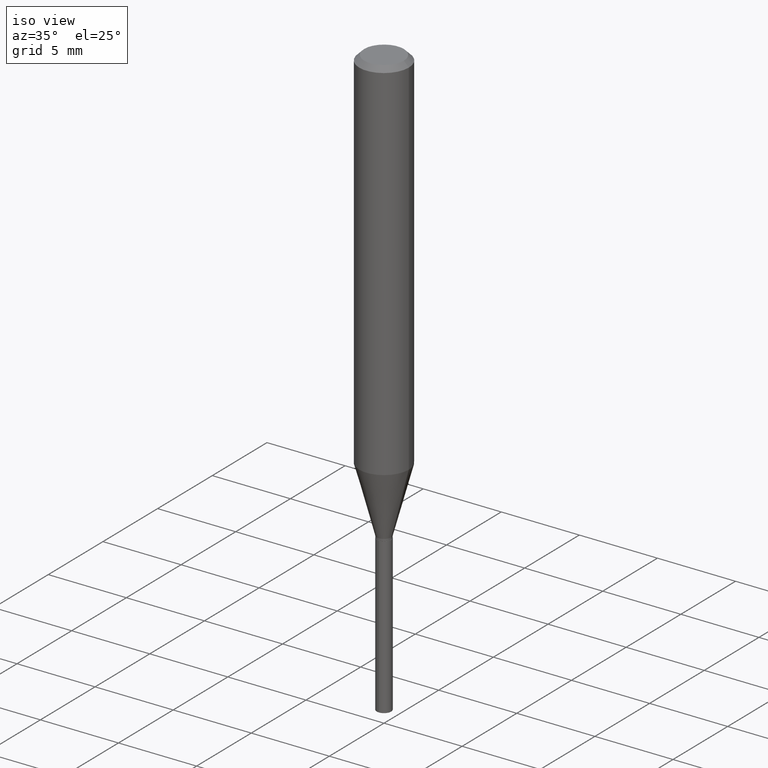
[diagram: clean part render]
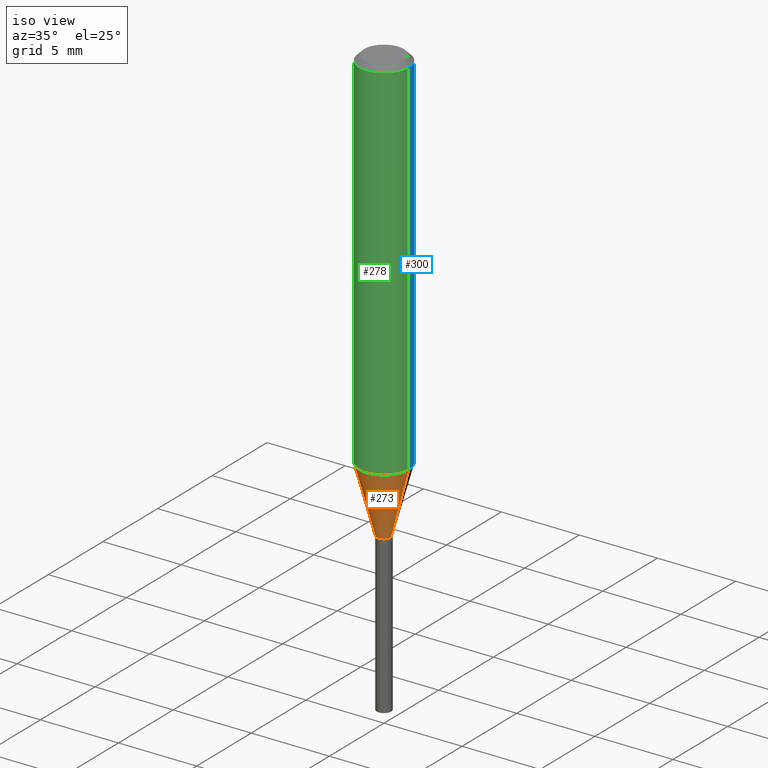
[diagram: same view with three faces highlighted in distinct colors, each labeled with its STEP entity id]
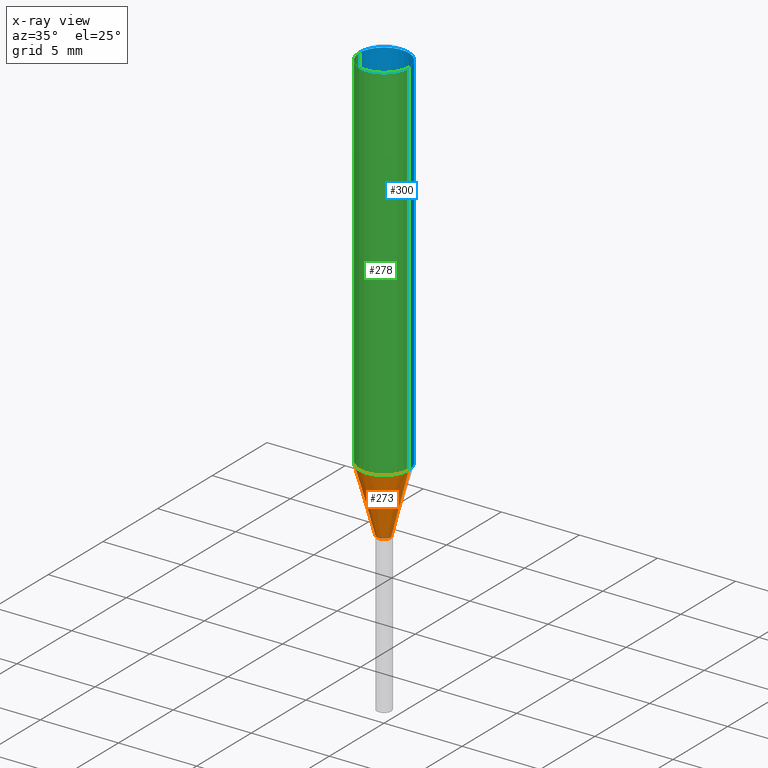
[diagram: x-ray of the same camera — body ghosted, the three highlighted faces saturated]
A machine part, iso view with three faces highlighted in distinct colors.
The next image is the same camera in x-ray (body ghosted, the three faces saturated) — at least one of them is partly hidden behind the body in this view.
Their STEP definitions:

[orange] entity #273 — the highlighted conical surface has half-angle 15 deg.
#7 = ORIENTED_EDGE ( 'NONE', *, *, #12, .T. ) ;
#12 = EDGE_CURVE ( 'NONE', #447, #254, #177, .T. ) ;
#43 = CARTESIAN_POINT ( 'NONE',  ( 2.676810155250250579E-29, -3.821775473497707863E-15, -1.094600000000000017 ) ) ;
#66 = DIRECTION ( 'NONE',  ( 1.000000000000000000, -6.982962677686267499E-15, 0.000000000000000000 ) ) ;
#81 = DIRECTION ( 'NONE',  ( -2.445468806185136597E-29, 3.491481338843145583E-15, 1.000000000000000000 ) ) ;
#91 = CARTESIAN_POINT ( 'NONE',  ( 0.01799999999999999864, -3.947468801696060853E-15, -1.094600000000000017 ) ) ;
#133 = EDGE_CURVE ( 'NONE', #388, #254, #258, .T. ) ;
#160 = DIRECTION ( 'NONE',  ( -2.445468806185136597E-29, 3.491481338843145583E-15, 1.000000000000000000 ) ) ;
#177 = LINE ( 'NONE', #481, #223 ) ;
#182 = DIRECTION ( 'NONE',  ( 0.2588190451025212391, 1.565188264969622362E-15, 0.9659258262890679791 ) ) ;
#185 = ORIENTED_EDGE ( 'NONE', *, *, #418, .F. ) ;
#197 = LINE ( 'NONE', #352, #302 ) ;
#203 = CARTESIAN_POINT ( 'NONE',  ( -0.06250000000000009714, -2.797834097761909708E-15, -0.9285237390631850829 ) ) ;
#213 = AXIS2_PLACEMENT_3D ( 'NONE', #43, #81, #469 ) ;
#216 = CARTESIAN_POINT ( 'NONE',  ( -0.01799999999999999864, -3.702431910341055478E-15, -1.094600000000000017 ) ) ;
#223 = VECTOR ( 'NONE', #182, 39.37007874015748854 ) ;
#230 = CARTESIAN_POINT ( 'NONE',  ( 0.06250000000000009714, -3.678358474967365966E-15, -0.9285237390631850829 ) ) ;
#238 = FACE_OUTER_BOUND ( 'NONE', #426, .T. ) ;
#254 = VERTEX_POINT ( 'NONE', #230 ) ;
#255 = CARTESIAN_POINT ( 'NONE',  ( 2.270675839681406298E-29, -3.241923307611973113E-15, -0.9285237390631850829 ) ) ;
#258 = CIRCLE ( 'NONE', #487, 0.06250000000000009714 ) ;
#273 = ADVANCED_FACE ( 'NONE', ( #238 ), #476, .T. ) ;
#287 = CARTESIAN_POINT ( 'NONE',  ( 2.676810155250250579E-29, -3.821775473497707863E-15, -1.094600000000000017 ) ) ;
#302 = VECTOR ( 'NONE', #387, 39.37007874015748854 ) ;
#308 = VERTEX_POINT ( 'NONE', #216 ) ;
#323 = DIRECTION ( 'NONE',  ( 1.000000000000000000, -6.982962677686279332E-15, 0.000000000000000000 ) ) ;
#334 = ORIENTED_EDGE ( 'NONE', *, *, #133, .F. ) ;
#352 = CARTESIAN_POINT ( 'NONE',  ( -0.01799999999999999864, -3.693877781060889716E-15, -1.094600000000000017 ) ) ;
#353 = EDGE_CURVE ( 'NONE', #308, #447, #363, .T. ) ;
#363 = CIRCLE ( 'NONE', #468, 0.01799999999999999864 ) ;
#379 = DIRECTION ( 'NONE',  ( -2.445468806185136597E-29, 3.491481338843145583E-15, 1.000000000000000000 ) ) ;
#387 = DIRECTION ( 'NONE',  ( -0.2588190451025212391, 5.211531920934549464E-15, 0.9659258262890679791 ) ) ;
#388 = VERTEX_POINT ( 'NONE', #203 ) ;
#413 = ORIENTED_EDGE ( 'NONE', *, *, #353, .T. ) ;
#418 = EDGE_CURVE ( 'NONE', #308, #388, #197, .T. ) ;
#426 = EDGE_LOOP ( 'NONE', ( #185, #413, #7, #334 ) ) ;
#447 = VERTEX_POINT ( 'NONE', #91 ) ;
#468 = AXIS2_PLACEMENT_3D ( 'NONE', #287, #160, #323 ) ;
#469 = DIRECTION ( 'NONE',  ( 1.000000000000000000, -6.982962677686279332E-15, 0.000000000000000000 ) ) ;
#476 = CONICAL_SURFACE ( 'NONE', #213, 0.01799999999999999864, 0.2617993877991499629 ) ;
#481 = CARTESIAN_POINT ( 'NONE',  ( 0.01799999999999999864, -3.947468801696060853E-15, -1.094600000000000017 ) ) ;
#487 = AXIS2_PLACEMENT_3D ( 'NONE', #255, #379, #66 ) ;

[blue] entity #300 — the highlighted cylindrical surface (edge-blend (fillet) strip) has radius 1.5875 mm, axis along (-0, 0, 1).
#26 = CIRCLE ( 'NONE', #142, 0.06250000000000000000 ) ;
#34 = ORIENTED_EDGE ( 'NONE', *, *, #391, .F. ) ;
#67 = VERTEX_POINT ( 'NONE', #453 ) ;
#79 = EDGE_CURVE ( 'NONE', #254, #388, #433, .T. ) ;
#85 = CARTESIAN_POINT ( 'NONE',  ( -0.06250000000000005551, 4.440892098500630106E-16, -3.074334431409318916E-30 ) ) ;
#87 = CYLINDRICAL_SURFACE ( 'NONE', #249, 0.06250000000000005551 ) ;
#90 = DIRECTION ( 'NONE',  ( -2.445468806185136597E-29, 3.491481338843145583E-15, 1.000000000000000000 ) ) ;
#99 = ORIENTED_EDGE ( 'NONE', *, *, #376, .T. ) ;
#102 = CARTESIAN_POINT ( 'NONE',  ( 2.270675839681406298E-29, -3.241923307611973113E-15, -0.9285237390631850829 ) ) ;
#126 = CARTESIAN_POINT ( 'NONE',  ( 3.056836007731440539E-31, -4.364351673553960451E-17, -0.01250000000000008049 ) ) ;
#142 = AXIS2_PLACEMENT_3D ( 'NONE', #126, #90, #328 ) ;
#168 = DIRECTION ( 'NONE',  ( 1.000000000000000000, -6.982962677686267499E-15, 0.000000000000000000 ) ) ;
#171 = DIRECTION ( 'NONE',  ( 1.000000000000000000, -6.982962677686266711E-15, 4.876176775795935232E-29 ) ) ;
#199 = DIRECTION ( 'NONE',  ( -2.445468806185136597E-29, 3.491481338843145583E-15, 1.000000000000000000 ) ) ;
#203 = CARTESIAN_POINT ( 'NONE',  ( -0.06250000000000009714, -2.797834097761909708E-15, -0.9285237390631850829 ) ) ;
#218 = DIRECTION ( 'NONE',  ( -2.445468806185136597E-29, 3.491481338843145583E-15, 1.000000000000000000 ) ) ;
#230 = CARTESIAN_POINT ( 'NONE',  ( 0.06250000000000009714, -3.678358474967365966E-15, -0.9285237390631850829 ) ) ;
#249 = AXIS2_PLACEMENT_3D ( 'NONE', #398, #199, #171 ) ;
#254 = VERTEX_POINT ( 'NONE', #230 ) ;
#274 = CARTESIAN_POINT ( 'NONE',  ( 0.06250000000000005551, -4.364351673553920638E-16, 3.047610484872462323E-30 ) ) ;
#277 = VECTOR ( 'NONE', #472, 39.37007874015748143 ) ;
#283 = LINE ( 'NONE', #274, #293 ) ;
#286 = DIRECTION ( 'NONE',  ( -2.445468806185136877E-29, 3.491481338843145188E-15, 1.000000000000000000 ) ) ;
#293 = VECTOR ( 'NONE', #286, 39.37007874015748143 ) ;
#300 = ADVANCED_FACE ( 'NONE', ( #437 ), #87, .T. ) ;
#319 = ORIENTED_EDGE ( 'NONE', *, *, #406, .F. ) ;
#324 = LINE ( 'NONE', #85, #277 ) ;
#328 = DIRECTION ( 'NONE',  ( 1.000000000000000000, -6.982962677686266711E-15, 0.000000000000000000 ) ) ;
#369 = AXIS2_PLACEMENT_3D ( 'NONE', #102, #218, #168 ) ;
#376 = EDGE_CURVE ( 'NONE', #388, #67, #324, .T. ) ;
#383 = VERTEX_POINT ( 'NONE', #463 ) ;
#388 = VERTEX_POINT ( 'NONE', #203 ) ;
#391 = EDGE_CURVE ( 'NONE', #383, #67, #26, .T. ) ;
#398 = CARTESIAN_POINT ( 'NONE',  ( 0.000000000000000000, 0.000000000000000000, 0.000000000000000000 ) ) ;
#406 = EDGE_CURVE ( 'NONE', #254, #383, #283, .T. ) ;
#420 = ORIENTED_EDGE ( 'NONE', *, *, #79, .T. ) ;
#433 = CIRCLE ( 'NONE', #369, 0.06250000000000009714 ) ;
#437 = FACE_OUTER_BOUND ( 'NONE', #465, .T. ) ;
#453 = CARTESIAN_POINT ( 'NONE',  ( -0.06250000000000000000, -1.198694202323692932E-15, -0.01250000000000008049 ) ) ;
#463 = CARTESIAN_POINT ( 'NONE',  ( 0.06250000000000000000, -4.800786840909312308E-16, -0.01250000000000008049 ) ) ;
#465 = EDGE_LOOP ( 'NONE', ( #420, #99, #34, #319 ) ) ;
#472 = DIRECTION ( 'NONE',  ( -2.445468806185136877E-29, 3.491481338843145188E-15, 1.000000000000000000 ) ) ;

[green] entity #278 — the highlighted cylindrical surface (edge-blend (fillet) strip) has radius 1.5875 mm, axis along (-0, 0, 1).
#66 = DIRECTION ( 'NONE',  ( 1.000000000000000000, -6.982962677686267499E-15, 0.000000000000000000 ) ) ;
#67 = VERTEX_POINT ( 'NONE', #453 ) ;
#69 = ORIENTED_EDGE ( 'NONE', *, *, #376, .F. ) ;
#71 = ORIENTED_EDGE ( 'NONE', *, *, #483, .F. ) ;
#85 = CARTESIAN_POINT ( 'NONE',  ( -0.06250000000000005551, 4.440892098500630106E-16, -3.074334431409318916E-30 ) ) ;
#101 = DIRECTION ( 'NONE',  ( 1.000000000000000000, -6.982962677686266711E-15, 0.000000000000000000 ) ) ;
#107 = ORIENTED_EDGE ( 'NONE', *, *, #406, .T. ) ;
#117 = EDGE_LOOP ( 'NONE', ( #69, #346, #107, #71 ) ) ;
#125 = CARTESIAN_POINT ( 'NONE',  ( 0.000000000000000000, 0.000000000000000000, 0.000000000000000000 ) ) ;
#133 = EDGE_CURVE ( 'NONE', #388, #254, #258, .T. ) ;
#156 = DIRECTION ( 'NONE',  ( -2.445468806185136597E-29, 3.491481338843145583E-15, 1.000000000000000000 ) ) ;
#196 = FACE_OUTER_BOUND ( 'NONE', #117, .T. ) ;
#203 = CARTESIAN_POINT ( 'NONE',  ( -0.06250000000000009714, -2.797834097761909708E-15, -0.9285237390631850829 ) ) ;
#207 = CIRCLE ( 'NONE', #364, 0.06250000000000000000 ) ;
#230 = CARTESIAN_POINT ( 'NONE',  ( 0.06250000000000009714, -3.678358474967365966E-15, -0.9285237390631850829 ) ) ;
#254 = VERTEX_POINT ( 'NONE', #230 ) ;
#255 = CARTESIAN_POINT ( 'NONE',  ( 2.270675839681406298E-29, -3.241923307611973113E-15, -0.9285237390631850829 ) ) ;
#258 = CIRCLE ( 'NONE', #487, 0.06250000000000009714 ) ;
#274 = CARTESIAN_POINT ( 'NONE',  ( 0.06250000000000005551, -4.364351673553920638E-16, 3.047610484872462323E-30 ) ) ;
#277 = VECTOR ( 'NONE', #472, 39.37007874015748143 ) ;
#278 = ADVANCED_FACE ( 'NONE', ( #196 ), #360, .T. ) ;
#283 = LINE ( 'NONE', #274, #293 ) ;
#286 = DIRECTION ( 'NONE',  ( -2.445468806185136877E-29, 3.491481338843145188E-15, 1.000000000000000000 ) ) ;
#291 = DIRECTION ( 'NONE',  ( -2.445468806185136597E-29, 3.491481338843145583E-15, 1.000000000000000000 ) ) ;
#293 = VECTOR ( 'NONE', #286, 39.37007874015748143 ) ;
#320 = DIRECTION ( 'NONE',  ( 1.000000000000000000, -6.982962677686266711E-15, 4.876176775795935232E-29 ) ) ;
#324 = LINE ( 'NONE', #85, #277 ) ;
#346 = ORIENTED_EDGE ( 'NONE', *, *, #133, .T. ) ;
#360 = CYLINDRICAL_SURFACE ( 'NONE', #440, 0.06250000000000005551 ) ;
#364 = AXIS2_PLACEMENT_3D ( 'NONE', #438, #291, #101 ) ;
#376 = EDGE_CURVE ( 'NONE', #388, #67, #324, .T. ) ;
#379 = DIRECTION ( 'NONE',  ( -2.445468806185136597E-29, 3.491481338843145583E-15, 1.000000000000000000 ) ) ;
#383 = VERTEX_POINT ( 'NONE', #463 ) ;
#388 = VERTEX_POINT ( 'NONE', #203 ) ;
#406 = EDGE_CURVE ( 'NONE', #254, #383, #283, .T. ) ;
#438 = CARTESIAN_POINT ( 'NONE',  ( 3.056836007731440539E-31, -4.364351673553960451E-17, -0.01250000000000008049 ) ) ;
#440 = AXIS2_PLACEMENT_3D ( 'NONE', #125, #156, #320 ) ;
#453 = CARTESIAN_POINT ( 'NONE',  ( -0.06250000000000000000, -1.198694202323692932E-15, -0.01250000000000008049 ) ) ;
#463 = CARTESIAN_POINT ( 'NONE',  ( 0.06250000000000000000, -4.800786840909312308E-16, -0.01250000000000008049 ) ) ;
#472 = DIRECTION ( 'NONE',  ( -2.445468806185136877E-29, 3.491481338843145188E-15, 1.000000000000000000 ) ) ;
#483 = EDGE_CURVE ( 'NONE', #67, #383, #207, .T. ) ;
#487 = AXIS2_PLACEMENT_3D ( 'NONE', #255, #379, #66 ) ;